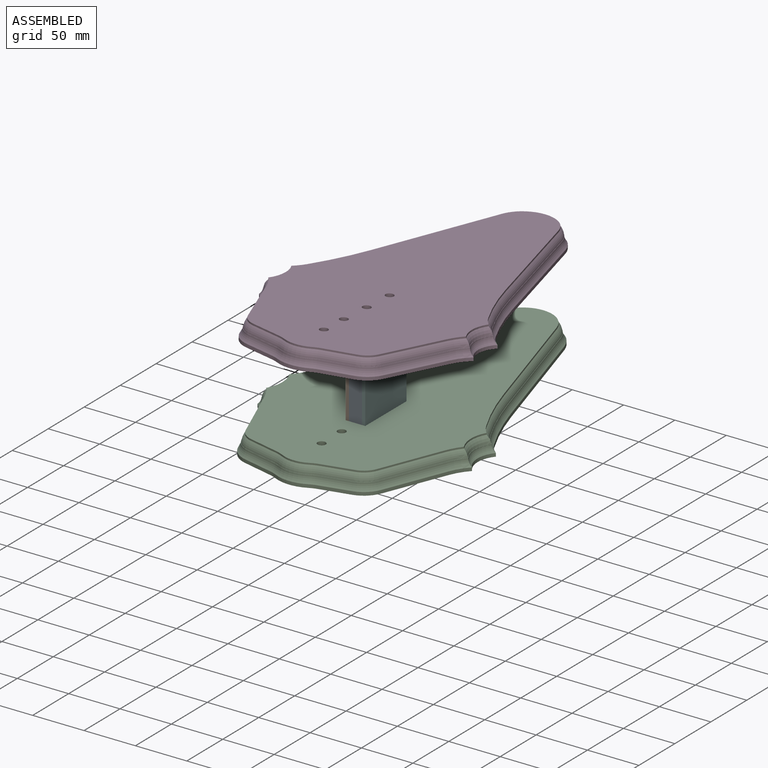
[diagram: assembled view]
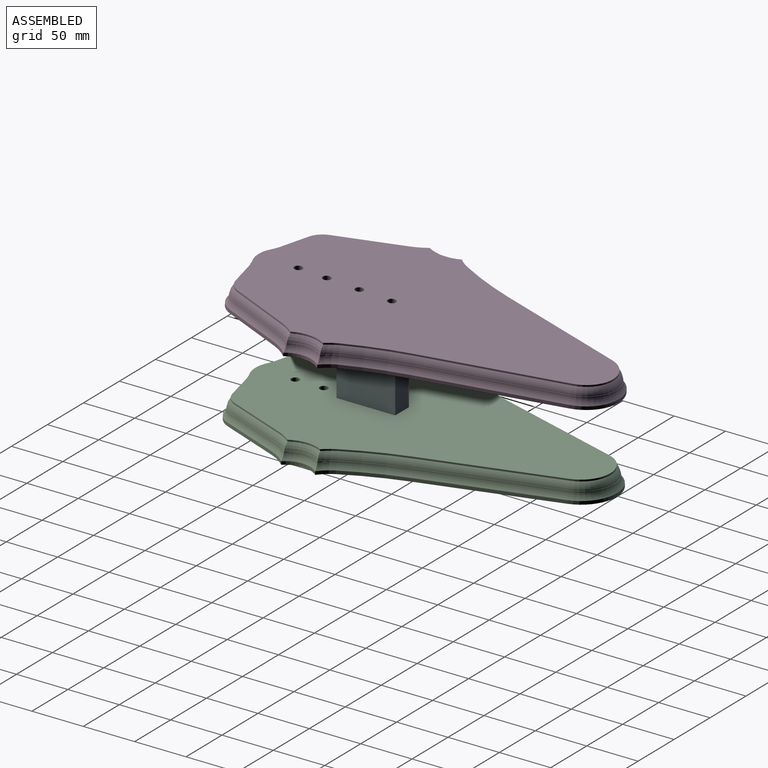
[diagram: assembled view, second angle]
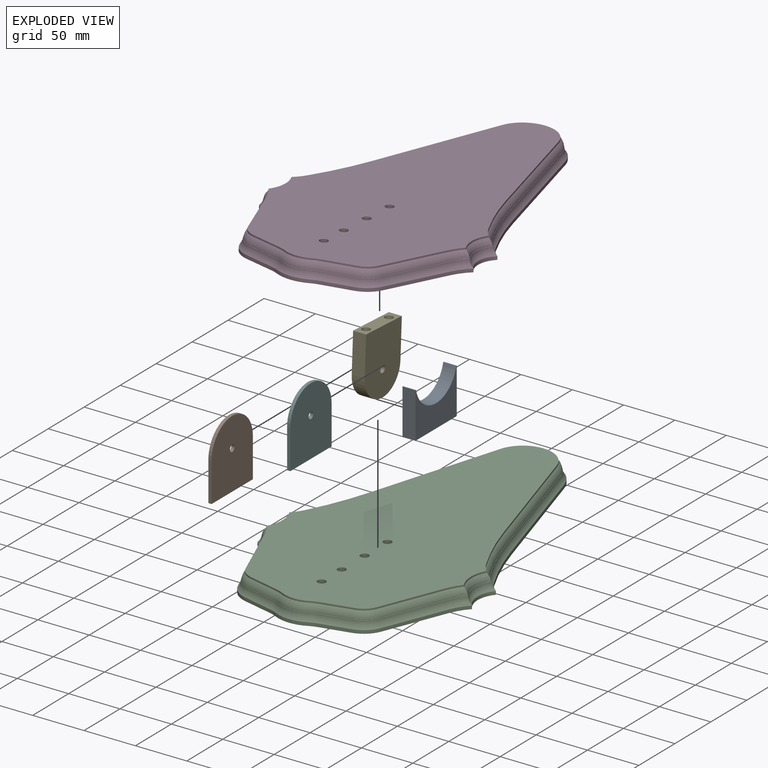
[diagram: exploded view]
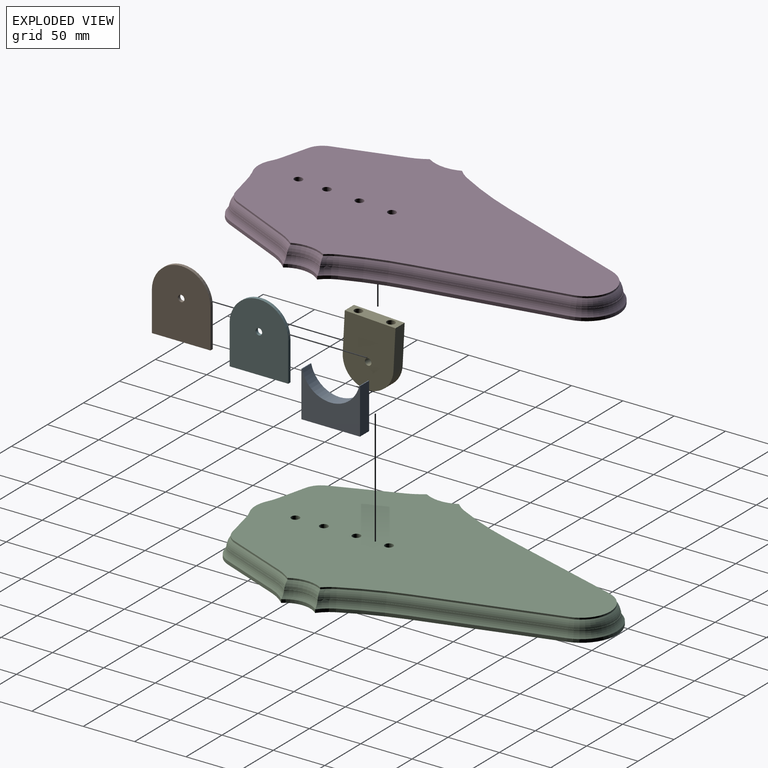
[diagram: exploded view, second angle]
ASSEMBLY  parts=6 mates=14
PART A: 12 faces, bbox 57.2x12.7x44.5 mm
  f0: plane 44.45x12.7mm, normal (-1,0,0), area 564.5mm2, adj f1,f5,f6,f7
  f1: plane 57.15x12.7mm, normal (0,0,-1), area 626.8mm2, adj f0,f2,f6,f7,f8,f10
  f2: plane 44.45x12.7mm, normal (1,0,0), area 564.5mm2, adj f1,f3,f6,f7
  f3: plane 12.7x0.71mm, normal (0,0,1), area 9.1mm2, adj f2,f4,f6,f7
  f4: cylinder r=28.57mm len=55.72mm, axis (0,1,0), area 977.4mm2, adj f3,f5,f6,f7
  f5: plane 12.7x0.71mm, normal (0,0,1), area 9.1mm2, adj f0,f4,f6,f7
  f6: plane 57.15x44.45mm, normal (0,-1,0), area 1617.6mm2, adj f0,f1,f2,f3,f4,f5
  f7: plane 57.15x44.45mm, normal (0,1,0), area 1617.6mm2, adj f0,f1,f2,f3,f4,f5
  f8: cylinder r=3.97mm len=7.94mm, axis (0,0,-1), area 158.3mm2, adj f1,f9
  f9: plane 7.94x7.94mm, normal (0,0,-1), area 49.5mm2, adj f8
  f10: cylinder r=3.97mm len=7.94mm, axis (0,0,-1), area 158.3mm2, adj f1,f11
  f11: plane 7.94x7.94mm, normal (0,0,-1), area 49.5mm2, adj f10
PART B: 7 faces, bbox 57.2x3.2x66.7 mm
  f0: cylinder r=28.57mm len=57.15mm, axis (0,1,0), area 285mm2, adj f1,f4,f5,f6
  f1: plane 38.1x3.18mm, normal (-1,0,0), area 121mm2, adj f0,f2,f5,f6
  f2: plane 57.15x3.18mm, normal (0,0,-1), area 181.5mm2, adj f1,f4,f5,f6
  f3: cylinder r=3.17mm len=6.35mm, axis (0,1,0), area 63.3mm2, adj f5,f6
  f4: plane 38.1x3.18mm, normal (1,0,0), area 121mm2, adj f0,f2,f5,f6
  f5: plane 66.68x57.15mm, normal (0,-1,0), area 3428.3mm2, adj f0,f1,f2,f3,f4
  f6: plane 66.68x57.15mm, normal (0,1,0), area 3428.3mm2, adj f0,f1,f2,f3,f4
PART C: 87 faces, bbox 209.7x365.4x19.1 mm
  f0: cylinder r=25.4mm len=33.12mm, axis (0,0,-1), area 114.5mm2, adj f2,f3,f25,f83
  f1: cylinder r=316.84mm len=55.56mm, axis (0,0,-1), area 190.6mm2, adj f2,f23,f25,f77
  f2: cylinder r=38.1mm len=12.7mm, axis (0,0,-1), area 53.1mm2, adj f0,f1,f25,f80
  f3: cylinder r=50.8mm len=16.44mm, axis (0,0,-1), area 62.6mm2, adj f0,f4,f25,f29
  f4: plane 59.98x24.05mm, normal (0.93,0.37,0), area 205.2mm2, adj f3,f5,f25,f32
  f5: cylinder r=25.4mm len=17.66mm, axis (0,0,-1), area 77mm2, adj f4,f6,f25,f35
  f6: plane 29.33x7.02mm, normal (0.23,0.97,0), area 95.8mm2, adj f5,f7,f25,f38
  f7: cylinder r=31.75mm len=6.87mm, axis (0,0,-1), area 23.3mm2, adj f6,f8,f25,f41
  f8: cylinder r=35.57mm len=31.96mm, axis (0,0,-1), area 105.2mm2, adj f7,f9,f25,f44
  f9: cylinder r=31.75mm len=6.87mm, axis (0,0,-1), area 23.3mm2, adj f8,f10,f25,f47
  f10: plane 29.33x7.02mm, normal (-0.23,0.97,0), area 95.8mm2, adj f9,f11,f25,f50
  f11: cylinder r=25.4mm len=17.66mm, axis (0,0,-1), area 77mm2, adj f10,f12,f25,f53
  f12: plane 59.98x24.05mm, normal (-0.93,0.37,0), area 205.2mm2, adj f11,f13,f25,f56
  f13: cylinder r=50.8mm len=16.44mm, axis (0,0,-1), area 62.6mm2, adj f12,f14,f25,f59
  f14: cylinder r=25.4mm len=33.12mm, axis (0,0,-1), area 114.5mm2, adj f13,f15,f25,f26
  f15: cylinder r=38.1mm len=12.7mm, axis (0,0,-1), area 53.1mm2, adj f14,f16,f25,f62
  f16: cylinder r=316.84mm len=55.56mm, axis (0,0,-1), area 190.6mm2, adj f15,f17,f25,f65
  f17: plane 127.45x37.97mm, normal (-0.96,-0.29,0), area 422.2mm2, adj f16,f18,f25,f68
  f18: cylinder r=34.92mm len=66.94mm, axis (0,0,-1), area 284.2mm2, adj f17,f23,f25,f71
  f19: cylinder r=3.97mm len=19.05mm, axis (0,0,-1), area 475mm2, adj f24,f25
  f20: cylinder r=3.97mm len=19.05mm, axis (0,0,-1), area 475mm2, adj f24,f25
  f21: cylinder r=3.97mm len=19.05mm, axis (0,0,-1), area 475mm2, adj f24,f25
  f22: cylinder r=3.97mm len=19.05mm, axis (0,0,-1), area 475mm2, adj f24,f25
  f23: plane 127.45x37.97mm, normal (0.96,-0.29,0), area 422.2mm2, adj f1,f18,f25,f74
  f24: plane 346.08x192.96mm, normal (0,0,1), area 42733.4mm2, adj f19,f20,f21,f22,f28,f31,f34,f37
  f25: plane 358.78x209.13mm, normal (0,0,-1), area 48336.5mm2, adj f0,f1,f2,f3,f4,f5,f6,f7
  f26: torus R=16.89mm, axis (0,0,-1), area 276.4mm2, adj f14,f59,f62,f86
  f27: torus R=39.97mm, axis (0,0,-1), area 271.4mm2, adj f28,f60,f63,f86
  f28: cylinder r=31.75mm len=31.67mm, axis (0,0,-1), area 52.6mm2, adj f24,f27,f61,f64
  f29: torus R=42.29mm, axis (0,0,-1), area 147.9mm2, adj f3,f32,f83,f86
  f30: torus R=65.37mm, axis (0,0,-1), area 141.1mm2, adj f31,f33,f84,f86
  f31: cylinder r=57.15mm len=14.5mm, axis (0,0,-1), area 26.8mm2, adj f24,f30,f34,f85
  f32: cylinder r=11.43mm len=61.07mm, axis (-0.37,0.93,0), area 508.6mm2, adj f4,f29,f35,f86
  f33: cylinder r=11.43mm len=61.17mm, axis (-0.37,0.93,0), area 515.8mm2, adj f30,f34,f36,f86
  f34: plane 59.98x24.05mm, normal (0.93,0.37,0), area 102.6mm2, adj f24,f31,f33,f37
  f35: torus R=33.91mm, axis (0,0,1), area 176.7mm2, adj f5,f32,f38,f86
  f36: torus R=10.83mm, axis (0,0,1), area 160.5mm2, adj f33,f37,f39,f86
  f37: cylinder r=19.05mm len=13.25mm, axis (0,0,1), area 28.9mm2, adj f24,f34,f36,f40
  f38: cylinder r=11.43mm len=30.01mm, axis (-0.97,0.23,0), area 237.4mm2, adj f6,f35,f41,f86
  f39: cylinder r=11.43mm len=30.08mm, axis (-0.97,0.23,0), area 240.8mm2, adj f36,f40,f42,f86
  f40: plane 29.33x7.02mm, normal (0.23,0.97,0), area 47.9mm2, adj f24,f37,f39,f43
  f41: torus R=23.24mm, axis (0,0,-1), area 61.1mm2, adj f7,f38,f44,f86
  f42: torus R=46.32mm, axis (0,0,-1), area 66.5mm2, adj f39,f43,f45,f86
  f43: cylinder r=38.1mm len=8.25mm, axis (0,0,-1), area 14mm2, adj f24,f40,f42,f46
  f44: torus R=44.08mm, axis (0,0,1), area 247.1mm2, adj f8,f41,f47,f86
  f45: torus R=21mm, axis (0,0,1), area 232.3mm2, adj f42,f46,f48,f86
  f46: cylinder r=29.22mm len=26.26mm, axis (0,0,1), area 43.2mm2, adj f24,f43,f45,f49
  f47: torus R=23.24mm, axis (0,0,-1), area 61.1mm2, adj f9,f44,f50,f86
  f48: torus R=46.32mm, axis (0,0,-1), area 66.5mm2, adj f45,f49,f51,f86
  f49: cylinder r=38.1mm len=8.25mm, axis (0,0,-1), area 14mm2, adj f24,f46,f48,f52
  f50: cylinder r=11.43mm len=30.01mm, axis (-0.97,-0.23,0), area 237.4mm2, adj f10,f47,f53,f86
  f51: cylinder r=11.43mm len=30.08mm, axis (-0.97,-0.23,0), area 240.8mm2, adj f48,f52,f54,f86
  f52: plane 29.33x7.02mm, normal (-0.23,0.97,0), area 47.9mm2, adj f24,f49,f51,f55
  f53: torus R=33.91mm, axis (0,0,1), area 176.7mm2, adj f11,f50,f56,f86
  f54: torus R=10.83mm, axis (0,0,1), area 160.5mm2, adj f51,f55,f57,f86
  f55: cylinder r=19.05mm len=13.25mm, axis (0,0,1), area 28.9mm2, adj f24,f52,f54,f58
  f56: cylinder r=11.43mm len=61.07mm, axis (-0.37,-0.93,0), area 508.6mm2, adj f12,f53,f59,f86
  f57: cylinder r=11.43mm len=61.17mm, axis (-0.37,-0.93,0), area 515.8mm2, adj f54,f58,f60,f86
  f58: plane 59.98x24.05mm, normal (-0.93,0.37,0), area 102.6mm2, adj f24,f55,f57,f61
  f59: torus R=42.29mm, axis (0,0,-1), area 147.9mm2, adj f13,f26,f56,f86
  f60: torus R=65.37mm, axis (0,0,-1), area 141.1mm2, adj f27,f57,f61,f86
  f61: cylinder r=57.15mm len=14.5mm, axis (0,0,-1), area 26.8mm2, adj f24,f28,f58,f60
  f62: torus R=29.59mm, axis (0,0,-1), area 123.1mm2, adj f15,f26,f65,f86
  f63: torus R=52.67mm, axis (0,0,-1), area 114.6mm2, adj f27,f64,f66,f86
  f64: cylinder r=44.45mm len=10.8mm, axis (0,0,-1), area 21.3mm2, adj f24,f28,f63,f67
  f65: torus R=308.33mm, axis (0,0,-1), area 475.1mm2, adj f16,f62,f68,f86
  f66: torus R=331.41mm, axis (0,0,-1), area 485.7mm2, adj f63,f67,f69,f86
  f67: cylinder r=323.19mm len=56.68mm, axis (0,0,-1), area 97.2mm2, adj f24,f64,f66,f70
  f68: cylinder r=11.43mm len=128.28mm, axis (0.29,-0.96,0), area 1046.4mm2, adj f17,f65,f71,f86
  f69: cylinder r=11.43mm len=128.36mm, axis (0.29,-0.96,0), area 1061.5mm2, adj f66,f70,f72,f86
  f70: plane 127.45x37.97mm, normal (-0.96,-0.29,0), area 211.1mm2, adj f24,f67,f69,f73
  f71: torus R=43.44mm, axis (0,0,1), area 666.6mm2, adj f18,f68,f74,f86
  f72: torus R=20.35mm, axis (0,0,1), area 625.6mm2, adj f69,f73,f75,f86
  f73: cylinder r=28.57mm len=54.77mm, axis (0,0,1), area 116.2mm2, adj f24,f70,f72,f76
  f74: cylinder r=11.43mm len=128.28mm, axis (0.29,0.96,0), area 1046.4mm2, adj f23,f71,f77,f86
  f75: cylinder r=11.43mm len=128.36mm, axis (0.29,0.96,0), area 1061.5mm2, adj f72,f76,f78,f86
  f76: plane 127.45x37.97mm, normal (0.96,-0.29,0), area 211.1mm2, adj f24,f73,f75,f79
  f77: torus R=308.33mm, axis (0,0,-1), area 475.1mm2, adj f1,f74,f80,f86
  f78: torus R=331.41mm, axis (0,0,-1), area 485.7mm2, adj f75,f79,f81,f86
  f79: cylinder r=323.19mm len=56.68mm, axis (0,0,-1), area 97.2mm2, adj f24,f76,f78,f82
  f80: torus R=29.59mm, axis (0,0,-1), area 123.1mm2, adj f2,f77,f83,f86
  f81: torus R=52.67mm, axis (0,0,-1), area 114.6mm2, adj f78,f82,f84,f86
  f82: cylinder r=44.45mm len=10.8mm, axis (0,0,-1), area 21.3mm2, adj f24,f79,f81,f85
  f83: torus R=16.89mm, axis (0,0,-1), area 276.4mm2, adj f0,f29,f80,f86
  f84: torus R=39.97mm, axis (0,0,-1), area 271.4mm2, adj f30,f81,f85,f86
  f85: cylinder r=31.75mm len=31.67mm, axis (0,0,-1), area 52.6mm2, adj f24,f31,f82,f84
  f86: plane 352.95x201.49mm, normal (0,0,1), area 224.3mm2, adj f26,f27,f29,f30,f32,f33,f35,f36
PART D: same geometry as C
PART E: 11 faces, bbox 49.5x12.7x62.9 mm
  f0: plane 38.1x12.7mm, normal (-1,0,0), area 483.9mm2, adj f1,f3,f5,f6
  f1: cylinder r=24.77mm len=49.53mm, axis (0,1,0), area 988.1mm2, adj f0,f2,f5,f6
  f2: plane 38.1x12.7mm, normal (1,0,0), area 483.9mm2, adj f1,f3,f5,f6
  f3: plane 49.53x12.7mm, normal (0,0,1), area 530.1mm2, adj f0,f2,f5,f6,f7,f9
  f4: cylinder r=3.17mm len=12.7mm, axis (0,1,0), area 253.4mm2, adj f5,f6
  f5: plane 62.87x49.53mm, normal (0,-1,0), area 2818.8mm2, adj f0,f1,f2,f3,f4
  f6: plane 62.87x49.53mm, normal (0,1,0), area 2818.8mm2, adj f0,f1,f2,f3,f4
  f7: cylinder r=3.97mm len=7.94mm, axis (0,0,1), area 158.3mm2, adj f3,f8
  f8: plane 7.94x7.94mm, normal (0,0,1), area 49.5mm2, adj f7
  f9: cylinder r=3.97mm len=7.94mm, axis (0,0,1), area 158.3mm2, adj f3,f10
  f10: plane 7.94x7.94mm, normal (0,0,1), area 49.5mm2, adj f9
PART F: same geometry as B
PLACE A rot(axis=(0,0,-1),90.1deg) t=(-18.06,-1.89,-19.65)mm
PLACE B rot(axis=(0,0,-1),90.1deg) t=(-30.83,-30.44,18.45)mm
PLACE C rot(axis=(0,0,1),179.9deg) t=(-23.88,207.67,-38.7)mm fixed
PLACE D rot(axis=(0,0.03,1),179.9deg) t=(-23.88,209.31,44.36)mm
PLACE E rot(axis=(-0.03,-0.03,-1),90.2deg) t=(-18.13,-30.47,18.45)mm
PLACE F rot(axis=(0,0,-1),90.1deg) t=(-14.96,-30.48,18.45)mm
MATE planar A.f2 <-> B.f4  axis (0,-1,0) through (-24.55,-59.03,2.57)mm
MATE cylindrical A.f8 <-> C.f19  axis (0,0,-1) through (-24.52,-46.33,-19.65)mm
MATE planar A.f7 <-> F.f5  axis (1,0,0) through (-18.13,-30.47,-4.81)mm
MATE planar E.f5 <-> B.f6  axis (-1,0,0) through (-30.83,-29.97,27.6)mm
MATE cylindrical E.f9 <-> D.f20  axis (0,0.05,1) through (-24.44,-12.82,52.52)mm
MATE planar F.f2 <-> A.f1  axis (0,0,-1) through (-16.54,-30.47,-19.65)mm
MATE cylindrical C.f20 <-> A.f10  axis (0,0,-1) through (-24.44,-14.58,-29.18)mm
MATE cylindrical E.f4 <-> F.f3  axis (1,0,0) through (-24.48,-30.45,18.45)mm
MATE planar C.f24 <-> A.f1  axis (0,0,1) through (-24.39,5.86,-19.65)mm
MATE planar A.f0 <-> F.f1  axis (0,1,0) through (-24.41,-1.88,2.57)mm
MATE planar A.f6 <-> B.f6  axis (-1,0,0) through (-30.83,-30.44,-4.81)mm
MATE planar A.f1 <-> B.f2  axis (0,0,-1) through (-24.55,-59.03,-19.65)mm
MATE planar D.f25 <-> E.f3  axis (0,-0.05,-1) through (-24.38,8.9,54.59)mm
MATE cylindrical D.f19 <-> E.f7  axis (0,0.05,1) through (-24.51,-43.39,76.33)mm
